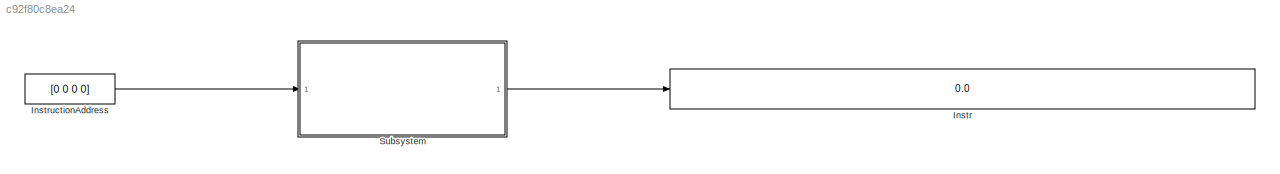
MODEL slx_c92f80c8ea24
KIND model
CONFIG AbsTol = auto
CONFIG EnableMultiTasking = off
CONFIG FixedStep = auto
CONFIG MaxStep = auto
CONFIG MinStep = auto
CONFIG RelTol = 1e-3
CONFIG SampleTimeConstraint = Unconstrained
CONFIG SolverName = VariableStepAuto
CONFIG StartTime = 0.0
CONFIG StopTime = 10.0
BLOCK [Display] Instr
  Decimation = 1
  Ports = [1]
BLOCK [Constant] InstructionAddress
  Value = [0 0 0 0]
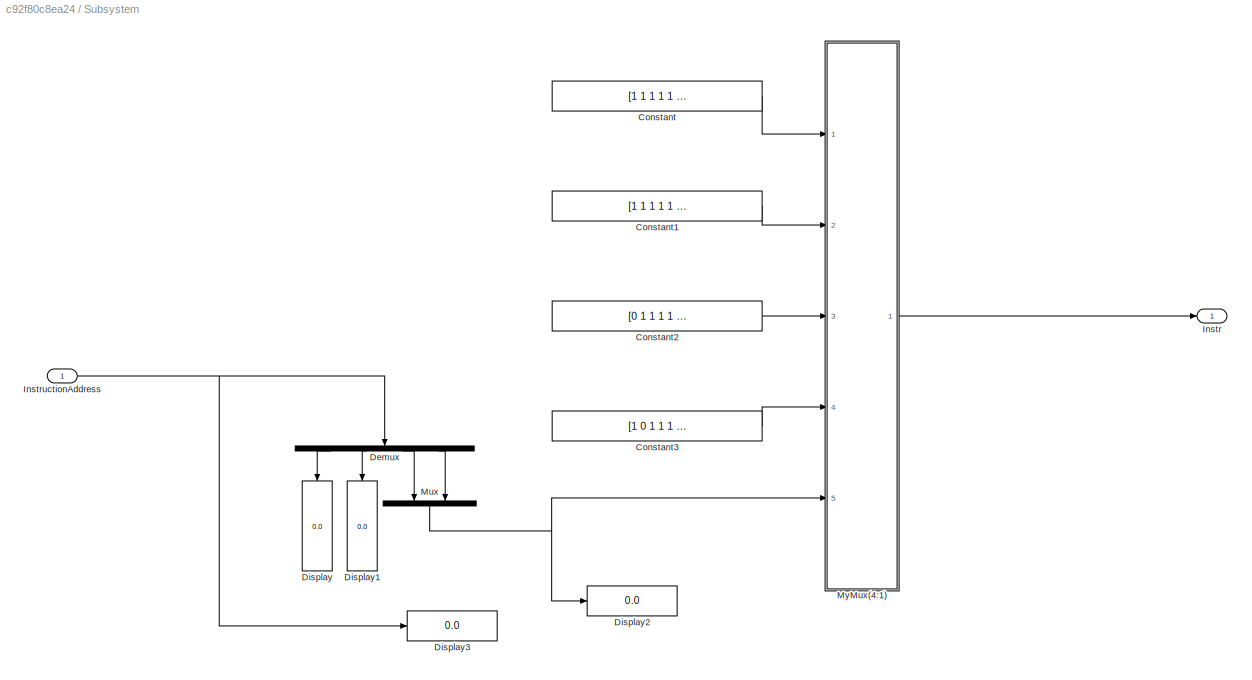
BLOCK [SubSystem] Subsystem
  Ports = [1, 1]
  RequestExecContextInheritance = off
BLOCK [Constant] Subsystem/Constant
  Value = [1 1 1 1 1 1 1 1 1 1 1 1 1 1 1 1]
BLOCK [Constant] Subsystem/Constant1
  Value = [1 1 1 1 1 0 1 1 1 1 1 1 1 1 1 1]
BLOCK [Constant] Subsystem/Constant2
  Value = [0 1 1 1 1 1 1 1 1 1 1 1 1 1 1 1]
BLOCK [Constant] Subsystem/Constant3
  Value = [1 0 1 1 1 1 1 1 1 1 1 1 1 1 1 1]
BLOCK [Demux] Subsystem/Demux
  NameLocation = left
  Ports = [1, 4]
BLOCK [Display] Subsystem/Display
  Decimation = 1
  NameLocation = left
  Ports = [1]
BLOCK [Display] Subsystem/Display1
  Decimation = 1
  NameLocation = left
  Ports = [1]
BLOCK [Display] Subsystem/Display2
  Decimation = 1
  Ports = [1]
BLOCK [Display] Subsystem/Display3
  Decimation = 1
  Ports = [1]
BLOCK [Outport] Subsystem/Instr
BLOCK [Inport] Subsystem/InstructionAddress
BLOCK [Mux] Subsystem/Mux
  DisplayOption = bar
  Inputs = 2
  NameLocation = left
  Ports = [2, 1]
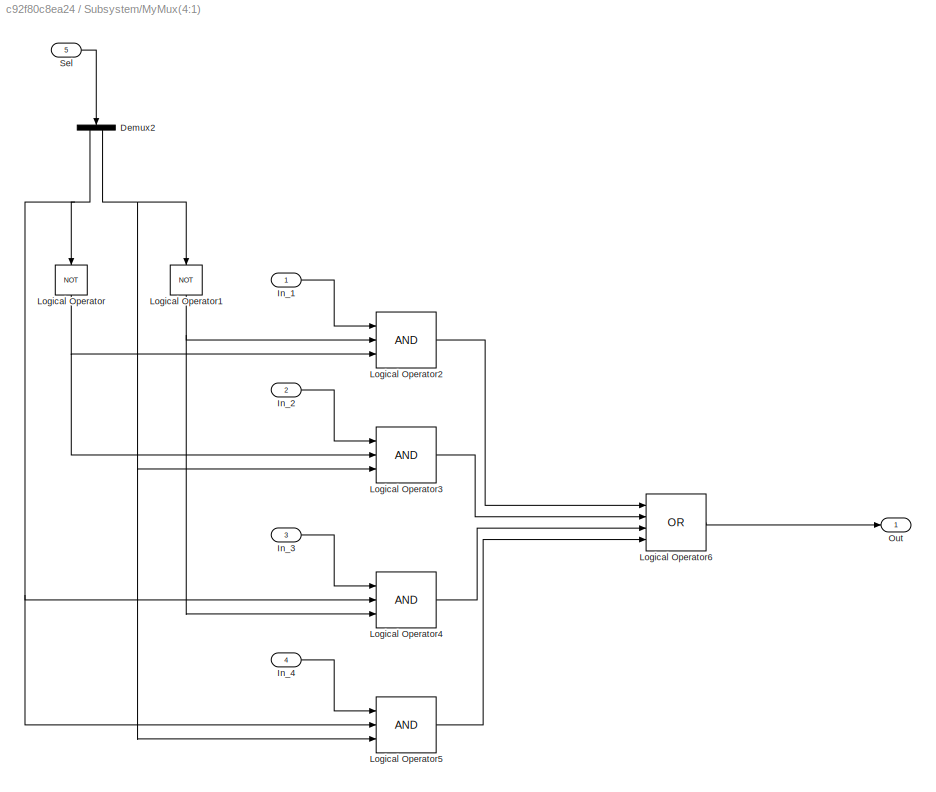
BLOCK [SubSystem] Subsystem/MyMux(4:1)
  Ports = [5, 1]
  RequestExecContextInheritance = off
BLOCK [Demux] Subsystem/MyMux(4:1)/Demux2
  NameLocation = left
  Outputs = 2
  Ports = [1, 2]
BLOCK [Inport] Subsystem/MyMux(4:1)/In_1
BLOCK [Inport] Subsystem/MyMux(4:1)/In_2
  Port = 2
BLOCK [Inport] Subsystem/MyMux(4:1)/In_3
  Port = 3
BLOCK [Inport] Subsystem/MyMux(4:1)/In_4
  Port = 4
BLOCK [Logic] Subsystem/MyMux(4:1)/Logical Operator
  AllPortsSameDT = off
  NameLocation = left
  Operator = NOT
  OutDataTypeStr = boolean
  Ports = [1, 1]
BLOCK [Logic] Subsystem/MyMux(4:1)/Logical Operator1
  AllPortsSameDT = off
  NameLocation = left
  Operator = NOT
  OutDataTypeStr = boolean
  Ports = [1, 1]
BLOCK [Logic] Subsystem/MyMux(4:1)/Logical Operator2
  AllPortsSameDT = off
  Inputs = 3
  OutDataTypeStr = boolean
  Ports = [3, 1]
BLOCK [Logic] Subsystem/MyMux(4:1)/Logical Operator3
  AllPortsSameDT = off
  Inputs = 3
  OutDataTypeStr = boolean
  Ports = [3, 1]
BLOCK [Logic] Subsystem/MyMux(4:1)/Logical Operator4
  AllPortsSameDT = off
  Inputs = 3
  OutDataTypeStr = boolean
  Ports = [3, 1]
BLOCK [Logic] Subsystem/MyMux(4:1)/Logical Operator5
  AllPortsSameDT = off
  Inputs = 3
  OutDataTypeStr = boolean
  Ports = [3, 1]
BLOCK [Logic] Subsystem/MyMux(4:1)/Logical Operator6
  AllPortsSameDT = off
  Inputs = 4
  Operator = OR
  OutDataTypeStr = boolean
  Ports = [4, 1]
BLOCK [Outport] Subsystem/MyMux(4:1)/Out
BLOCK [Inport] Subsystem/MyMux(4:1)/Sel
  Port = 5
LINE InstructionAddress:1 -> Subsystem:1
LINE Subsystem/Constant1:1 -> Subsystem/MyMux(4:1):2
LINE Subsystem/Constant2:1 -> Subsystem/MyMux(4:1):3
LINE Subsystem/Constant3:1 -> Subsystem/MyMux(4:1):4
LINE Subsystem/Constant:1 -> Subsystem/MyMux(4:1):1
LINE Subsystem/Demux:1 -> Subsystem/Display:1
LINE Subsystem/Demux:2 -> Subsystem/Display1:1
LINE Subsystem/Demux:3 -> Subsystem/Mux:1
LINE Subsystem/Demux:4 -> Subsystem/Mux:2
NET Subsystem/InstructionAddress:1 -> Subsystem/Demux:1, Subsystem/Display3:1
NET Subsystem/Mux:1 -> Subsystem/Display2:1, Subsystem/MyMux(4:1):5
NET Subsystem/MyMux(4:1)/Demux2:1 -> Subsystem/MyMux(4:1)/Logical Operator4:2, Subsystem/MyMux(4:1)/Logical Operator5:2, Subsystem/MyMux(4:1)/Logical Operator:1
NET Subsystem/MyMux(4:1)/Demux2:2 -> Subsystem/MyMux(4:1)/Logical Operator1:1, Subsystem/MyMux(4:1)/Logical Operator3:3, Subsystem/MyMux(4:1)/Logical Operator5:3
LINE Subsystem/MyMux(4:1)/In_1:1 -> Subsystem/MyMux(4:1)/Logical Operator2:1
LINE Subsystem/MyMux(4:1)/In_2:1 -> Subsystem/MyMux(4:1)/Logical Operator3:1
LINE Subsystem/MyMux(4:1)/In_3:1 -> Subsystem/MyMux(4:1)/Logical Operator4:1
LINE Subsystem/MyMux(4:1)/In_4:1 -> Subsystem/MyMux(4:1)/Logical Operator5:1
NET Subsystem/MyMux(4:1)/Logical Operator1:1 -> Subsystem/MyMux(4:1)/Logical Operator2:2, Subsystem/MyMux(4:1)/Logical Operator4:3
LINE Subsystem/MyMux(4:1)/Logical Operator2:1 -> Subsystem/MyMux(4:1)/Logical Operator6:1
LINE Subsystem/MyMux(4:1)/Logical Operator3:1 -> Subsystem/MyMux(4:1)/Logical Operator6:2
LINE Subsystem/MyMux(4:1)/Logical Operator4:1 -> Subsystem/MyMux(4:1)/Logical Operator6:3
LINE Subsystem/MyMux(4:1)/Logical Operator5:1 -> Subsystem/MyMux(4:1)/Logical Operator6:4
LINE Subsystem/MyMux(4:1)/Logical Operator6:1 -> Subsystem/MyMux(4:1)/Out:1
NET Subsystem/MyMux(4:1)/Logical Operator:1 -> Subsystem/MyMux(4:1)/Logical Operator2:3, Subsystem/MyMux(4:1)/Logical Operator3:2
LINE Subsystem/MyMux(4:1)/Sel:1 -> Subsystem/MyMux(4:1)/Demux2:1
LINE Subsystem/MyMux(4:1):1 -> Subsystem/Instr:1
LINE Subsystem:1 -> Instr:1
note: NET lines group one-source signal fan-out (src -> all destinations, sorted); 1:1 wires keep LINE
